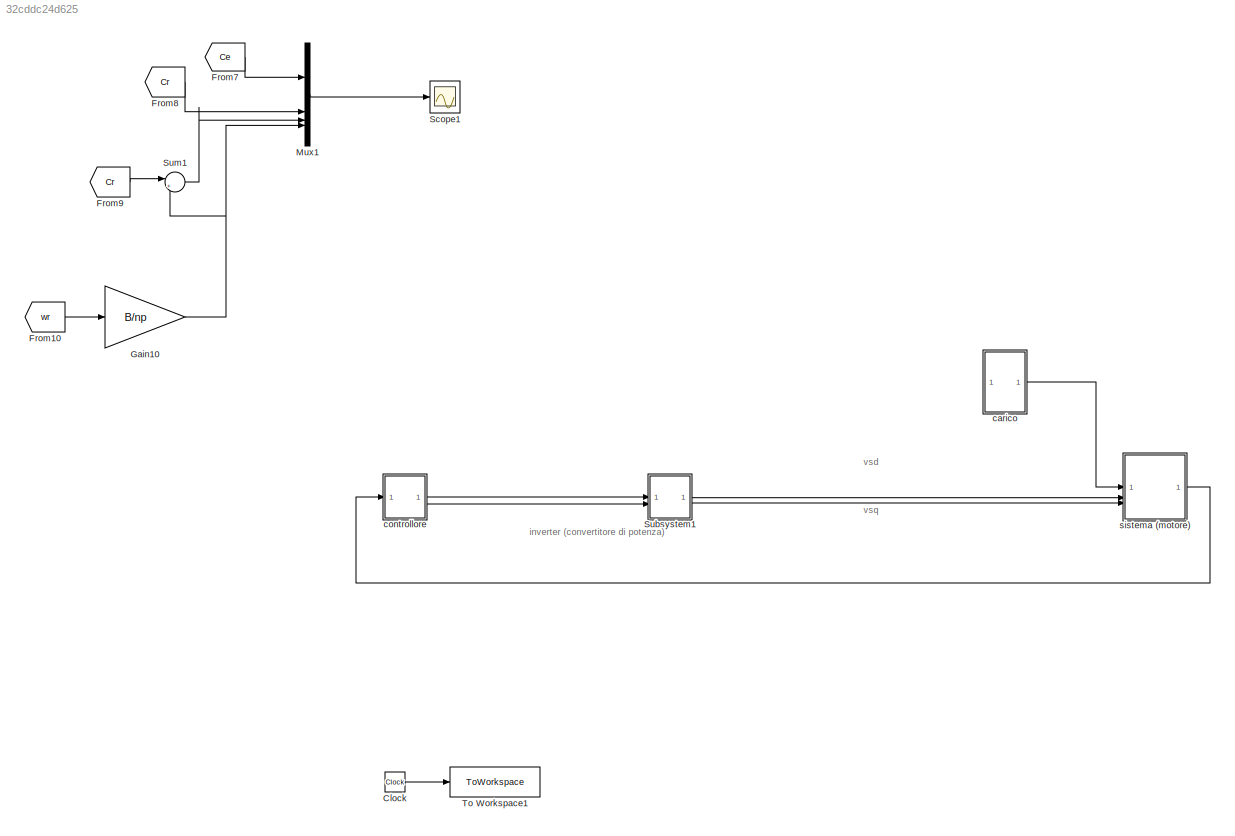
MODEL slx_32cddc24d625
KIND model
CONFIG AbsTol = auto
CONFIG EnableMultiTasking = off
CONFIG FixedStep = 1e-5
CONFIG MaxStep = auto
CONFIG MinStep = auto
CONFIG RelTol = 1e-3
CONFIG SampleTimeConstraint = Unconstrained
CONFIG SolverName = FixedStepAuto
CONFIG StartTime = 0.0
CONFIG StopTime = 0.2
BLOCK [Clock] Clock
BLOCK [From] From10
  GotoTag = wr
  TagVisibility = global
BLOCK [From] From7
  GotoTag = Ce
  TagVisibility = global
BLOCK [From] From8
  GotoTag = Cr
  TagVisibility = global
BLOCK [From] From9
  GotoTag = Cr
  TagVisibility = global
BLOCK [Gain] Gain10
  Gain = B/np
BLOCK [Mux] Mux1
  DisplayOption = bar
BLOCK [Scope] Scope1
  ActiveDisplayYMaximum = 0.67499999999999138
  ActiveDisplayYMinimum = -0.074999999999999026
  DataLoggingVariableName = ScopeData2
  Floating = off
  GraphicalSettings = {"Style":{"BackgroundColor":[0.12941176470588237,0.12941176470588237,0.12941176470588237],"AxesColor":[0.07058823529411765,0.07058823529411765,0.07058823529411765],"LabelsColor":[0.8509803921568627,0.8509803921568627,0.8509803921568627],"PreserveColors":false,"Visible":[true,true,true,true],"LineStyle":["-","-","-","-"],"LineWidth":[1.5,1.5,1.5,1.5],"BarWidth":[0.9,0.9,0.9,0.9],"LineColor":["auto"...<+2330ch>
  MultipleDisplayCache = [{"MaxYLimMag":0.67499999999999138,"MaxYLimReal":0.67499999999999138,"MinYLimMag":0,"MinYLimReal":-0.074999999999999026,"PlotAsMagnitudePhase":false,"ShowGrid":true,"ShowLegend":false,"Title":"%<SignalLabel>","YLabel":""}]
  NumInputPorts = 1
  ScopeFrameLocation = window
  WasSavedAsWebScope = on
  WindowPosition = [0.000000,36.000000,1536.000000,793.000000,]
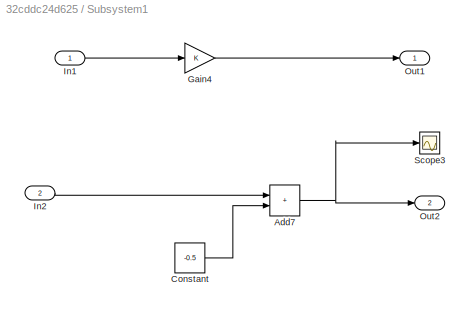
BLOCK [SubSystem] Subsystem1
BLOCK [Sum] Subsystem1/Add7
  IconShape = rectangular
BLOCK [Constant] Subsystem1/Constant
  Value = -0.5
BLOCK [Gain] Subsystem1/Gain4
BLOCK [Inport] Subsystem1/In1
BLOCK [Inport] Subsystem1/In2
  Port = 2
BLOCK [Outport] Subsystem1/Out1
BLOCK [Outport] Subsystem1/Out2
  Port = 2
BLOCK [Scope] Subsystem1/Scope3
  ActiveDisplayYMaximum = 128.16890254271289
  ActiveDisplayYMinimum = -10.413828677585377
  DataLoggingVariableName = ScopeData1
  Floating = off
  GraphicalSettings = {"Style":{"BackgroundColor":[0.12941176470588237,0.12941176470588237,0.12941176470588237],"AxesColor":[0.07058823529411765,0.07058823529411765,0.07058823529411765],"LabelsColor":[0.8509803921568627,0.8509803921568627,0.8509803921568627],"PreserveColors":false,"Visible":[true],"LineStyle":["-"],"LineWidth":[1.5],"BarWidth":[0.9],"LineColor":["auto"],"LineFaceAlpha":[1],"LineEdgeAlpha":[1],"Marker":...<+1995ch>
  MultipleDisplayCache = [{"MaxYLimMag":128.16890254271289,"MaxYLimReal":128.16890254271289,"MinYLimMag":0,"MinYLimReal":-10.413828677585377,"PlotAsMagnitudePhase":false,"ShowGrid":true,"ShowLegend":false,"Title":"%<SignalLabel>","YLabel":""}]
  NumInputPorts = 1
  ScopeFrameLocation = window
  WasSavedAsWebScope = on
  WindowPosition = [488.000000,222.000000,560.000000,420.000000,]
BLOCK [Sum] Sum1
  Inputs = |++
BLOCK [ToWorkspace] To Workspace1
  FixptAsFi = on
  MaxDataPoints = inf
  SampleTime = -1
  SaveFormat = Timeseries
  VariableName = ts
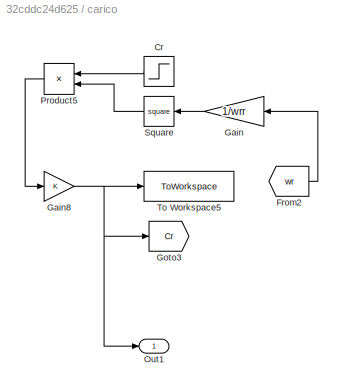
BLOCK [SubSystem] carico
BLOCK [Step] carico/Cr
  After = 0.6
  NameLocation = top
  SampleTime = 0
  Time = 0
BLOCK [From] carico/From2
  GotoTag = wr
  TagVisibility = global
BLOCK [Gain] carico/Gain
  Gain = 1/wrr
  NameLocation = top
BLOCK [Gain] carico/Gain8
BLOCK [Goto] carico/Goto3
  GotoTag = Cr
  TagVisibility = global
BLOCK [Outport] carico/Out1
BLOCK [Product] carico/Product5
  NameLocation = top
BLOCK [Math] carico/Square
  NameLocation = top
  Operator = square
BLOCK [ToWorkspace] carico/To Workspace5
  FixptAsFi = on
  MaxDataPoints = inf
  SampleTime = -1
  SaveFormat = Timeseries
  VariableName = Cr
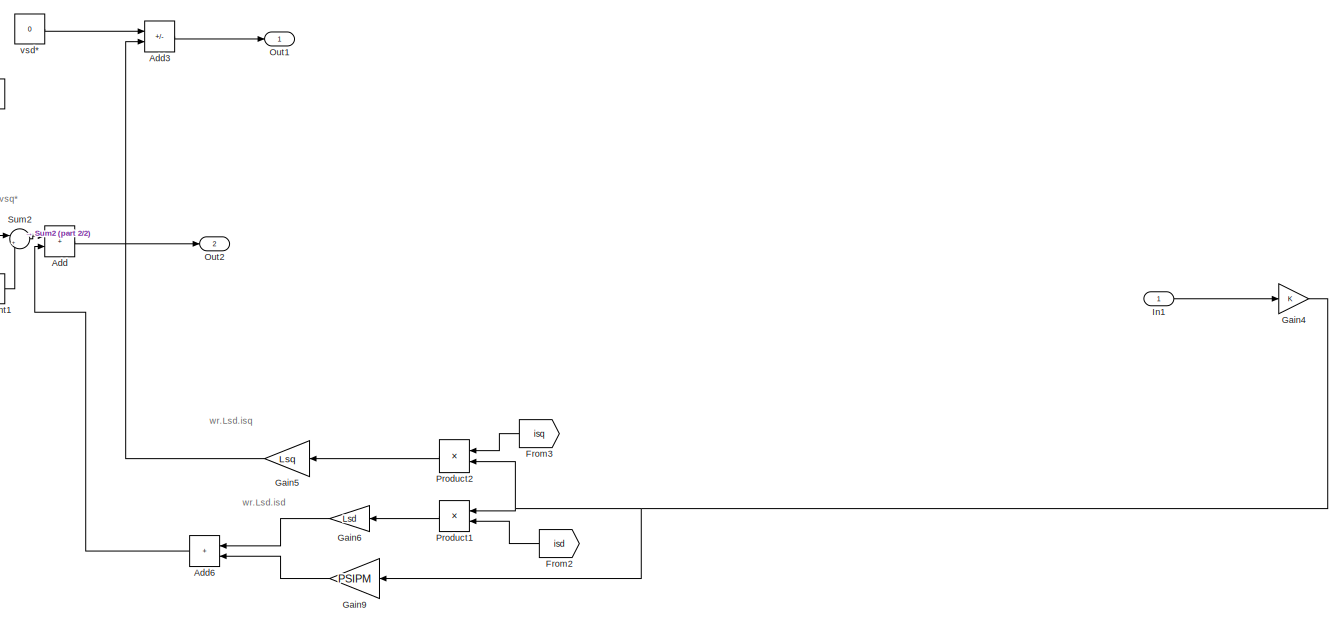
[diagram: controllore - part 1/2, most of the canvas]
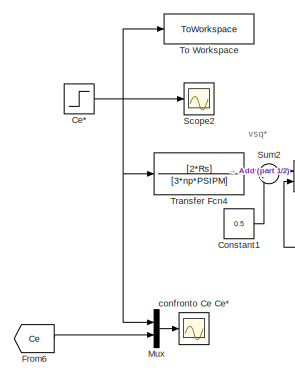
[diagram: controllore - part 2/2, middle left region]
BLOCK [SubSystem] controllore
BLOCK [Sum] controllore/Add
  IconShape = rectangular
BLOCK [Sum] controllore/Add3
  IconShape = rectangular
  Inputs = +-
BLOCK [Sum] controllore/Add6
  IconShape = rectangular
  NameLocation = top
BLOCK [Step] controllore/Ce*
  After = 0.6
  SampleTime = 0
  Time = 0
BLOCK [Constant] controllore/Constant1
  Value = 0.5
BLOCK [From] controllore/From2
  GotoTag = isd
  NameLocation = top
  TagVisibility = global
BLOCK [From] controllore/From3
  GotoTag = isq
  NameLocation = top
  TagVisibility = global
BLOCK [From] controllore/From6
  GotoTag = Ce
  TagVisibility = global
BLOCK [Gain] controllore/Gain4
BLOCK [Gain] controllore/Gain5
  Gain = Lsq
  NameLocation = top
BLOCK [Gain] controllore/Gain6
  Gain = Lsd
  NameLocation = top
BLOCK [Gain] controllore/Gain9
  Gain = PSIPM
  NameLocation = top
BLOCK [Inport] controllore/In1
BLOCK [Mux] controllore/Mux
  DisplayOption = bar
  Inputs = 2
BLOCK [Outport] controllore/Out1
BLOCK [Outport] controllore/Out2
  Port = 2
BLOCK [Product] controllore/Product1
  NameLocation = top
BLOCK [Product] controllore/Product2
  NameLocation = top
BLOCK [Scope] controllore/Scope2
  ActiveDisplayYMaximum = 1
  ActiveDisplayYMinimum = -1
  DataLoggingVariableName = ScopeData2
  Floating = off
  GraphicalSettings = {"Style":{"BackgroundColor":[0.12941176470588237,0.12941176470588237,0.12941176470588237],"AxesColor":[0.07058823529411765,0.07058823529411765,0.07058823529411765],"LabelsColor":[0.8509803921568627,0.8509803921568627,0.8509803921568627],"PreserveColors":false,"Visible":[true],"LineStyle":["-"],"LineWidth":[1.5],"BarWidth":[0.9],"LineColor":["auto"],"LineFaceAlpha":[1],"LineEdgeAlpha":[1],"Marker":...<+1904ch>
  MultipleDisplayCache = [{"MaxYLimMag":1,"MaxYLimReal":1,"MinYLimMag":0,"MinYLimReal":-1,"PlotAsMagnitudePhase":false,"ShowGrid":true,"ShowLegend":false,"Title":"%<SignalLabel>","YLabel":""}]
  NumInputPorts = 1
  ScopeFrameLocation = window
  WasSavedAsWebScope = on
  WindowPosition = [488.000000,222.000000,560.000000,420.000000,]
BLOCK [Sum] controllore/Sum2
  Inputs = |++
BLOCK [ToWorkspace] controllore/To Workspace
  FixptAsFi = on
  MaxDataPoints = inf
  SampleTime = -1
  SaveFormat = Timeseries
  VariableName = Cer
BLOCK [TransferFcn] controllore/Transfer Fcn4
  Denominator = [3*np*PSIPM]
  Numerator = [2*Rs]
BLOCK [Scope] controllore/confronto Ce Ce*
  ActiveDisplayYMaximum = 0.61079
  ActiveDisplayYMinimum = 0.29519
  DataLoggingVariableName = ScopeData1
  Floating = off
  GraphicalSettings = {"Style":{"BackgroundColor":[0.12941176470588237,0.12941176470588237,0.12941176470588237],"AxesColor":[0.07058823529411765,0.07058823529411765,0.07058823529411765],"LabelsColor":[0.8509803921568627,0.8509803921568627,0.8509803921568627],"PreserveColors":false,"Visible":[true,true],"LineStyle":["-","-"],"LineWidth":[1.5,1.5],"BarWidth":[0.9,0.9],"LineColor":["auto","auto"],"LineFaceAlpha":[1,1],"Li...<+2046ch>
  MultipleDisplayCache = [{"MaxYLimMag":0.61079,"MaxYLimReal":0.61079,"MinYLimMag":0.29519,"MinYLimReal":0.29519,"PlotAsMagnitudePhase":false,"ShowGrid":true,"ShowLegend":false,"Title":"%<SignalLabel>","YLabel":""}]
  NumInputPorts = 1
  ScopeFrameLocation = window
  Visible = on
  WasSavedAsWebScope = on
  WindowPosition = [488.000000,222.000000,560.000000,420.000000,]
BLOCK [Constant] controllore/vsd*
  Value = 0
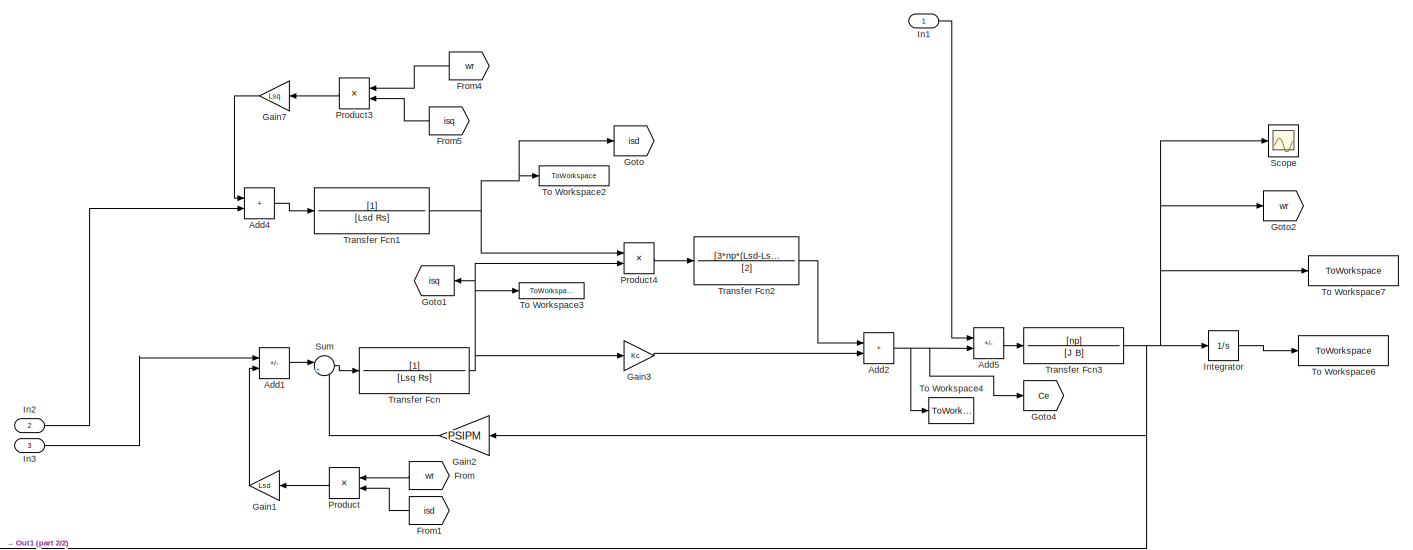
[diagram: sistema (motore) - part 1/2, most of the canvas]
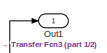
[diagram: sistema (motore) - part 2/2, bottom left region]
BLOCK [SubSystem] sistema (motore)
BLOCK [Sum] sistema (motore)/Add1
  IconShape = rectangular
  Inputs = +-
BLOCK [Sum] sistema (motore)/Add2
  IconShape = rectangular
BLOCK [Sum] sistema (motore)/Add4
  IconShape = rectangular
BLOCK [Sum] sistema (motore)/Add5
  IconShape = rectangular
  Inputs = -+
BLOCK [From] sistema (motore)/From
  GotoTag = wr
  NameLocation = top
  TagVisibility = global
BLOCK [From] sistema (motore)/From1
  GotoTag = isd
  NameLocation = top
  TagVisibility = global
BLOCK [From] sistema (motore)/From4
  GotoTag = wr
  NameLocation = top
  TagVisibility = global
BLOCK [From] sistema (motore)/From5
  GotoTag = isq
  NameLocation = top
  TagVisibility = global
BLOCK [Gain] sistema (motore)/Gain1
  Gain = Lsd
  NameLocation = top
BLOCK [Gain] sistema (motore)/Gain2
  Gain = PSIPM
  NameLocation = top
BLOCK [Gain] sistema (motore)/Gain3
  Gain = Kc
BLOCK [Gain] sistema (motore)/Gain7
  Gain = Lsq
  NameLocation = top
BLOCK [Goto] sistema (motore)/Goto
  GotoTag = isd
  TagVisibility = global
BLOCK [Goto] sistema (motore)/Goto1
  GotoTag = isq
  NameLocation = top
  TagVisibility = global
BLOCK [Goto] sistema (motore)/Goto2
  GotoTag = wr
  TagVisibility = global
BLOCK [Goto] sistema (motore)/Goto4
  GotoTag = Ce
  TagVisibility = global
BLOCK [Inport] sistema (motore)/In1
BLOCK [Inport] sistema (motore)/In2
  Port = 2
BLOCK [Inport] sistema (motore)/In3
  Port = 3
BLOCK [Integrator] sistema (motore)/Integrator
BLOCK [Outport] sistema (motore)/Out1
BLOCK [Product] sistema (motore)/Product
  NameLocation = top
BLOCK [Product] sistema (motore)/Product3
  NameLocation = top
BLOCK [Product] sistema (motore)/Product4
BLOCK [Scope] sistema (motore)/Scope
  ActiveDisplayYMaximum = 1385.8273122029825
  ActiveDisplayYMinimum = -153.98081246699803
  DataLoggingVariableName = ScopeData1
  Floating = off
  GraphicalSettings = {"Style":{"BackgroundColor":[0.12941176470588237,0.12941176470588237,0.12941176470588237],"AxesColor":[0.07058823529411765,0.07058823529411765,0.07058823529411765],"LabelsColor":[0.8509803921568627,0.8509803921568627,0.8509803921568627],"PreserveColors":false,"Visible":[true],"LineStyle":["-"],"LineWidth":[1.5],"BarWidth":[0.9],"LineColor":["auto"],"LineFaceAlpha":[1],"LineEdgeAlpha":[1],"Marker":...<+2012ch>
  MultipleDisplayCache = [{"MaxYLimMag":1385.8273122029825,"MaxYLimReal":1385.8273122029825,"MinYLimMag":0,"MinYLimReal":-153.98081246699803,"PlotAsMagnitudePhase":false,"ShowGrid":true,"ShowLegend":false,"Title":"%<SignalLabel>","YLabel":""}]
  NumInputPorts = 1
  ScopeFrameLocation = window
  WasSavedAsWebScope = on
  WindowPosition = [488.000000,222.000000,560.000000,420.000000,]
BLOCK [Sum] sistema (motore)/Sum
  Inputs = |+-
BLOCK [ToWorkspace] sistema (motore)/To Workspace2
  FixptAsFi = on
  MaxDataPoints = inf
  SampleTime = -1
  SaveFormat = Timeseries
  VariableName = isd
BLOCK [ToWorkspace] sistema (motore)/To Workspace3
  FixptAsFi = on
  MaxDataPoints = inf
  SampleTime = -1
  SaveFormat = Timeseries
  VariableName = isq
BLOCK [ToWorkspace] sistema (motore)/To Workspace4
  FixptAsFi = on
  MaxDataPoints = inf
  SampleTime = -1
  SaveFormat = Timeseries
  VariableName = Ce
BLOCK [ToWorkspace] sistema (motore)/To Workspace6
  FixptAsFi = on
  MaxDataPoints = inf
  SampleTime = -1
  SaveFormat = Timeseries
  VariableName = tetar
BLOCK [ToWorkspace] sistema (motore)/To Workspace7
  FixptAsFi = on
  MaxDataPoints = inf
  SampleTime = -1
  SaveFormat = Timeseries
  VariableName = wr
BLOCK [TransferFcn] sistema (motore)/Transfer Fcn
  Denominator = [Lsq Rs]
BLOCK [TransferFcn] sistema (motore)/Transfer Fcn1
  Denominator = [Lsd Rs]
BLOCK [TransferFcn] sistema (motore)/Transfer Fcn2
  Denominator = [2]
  Numerator = [3*np*(Lsd-Lsq)]
BLOCK [TransferFcn] sistema (motore)/Transfer Fcn3
  Denominator = [J B]
  Numerator = [np]
ANNOTATION (root): inverter (convertitore di potenza)
ANNOTATION (root): vsd
ANNOTATION (root): vsq
ANNOTATION controllore: vsq*
ANNOTATION controllore: wr.Lsd.isd
ANNOTATION controllore: wr.Lsd.isq
LINE Clock:1 -> To Workspace1:1
LINE From10:1 -> Gain10:1
LINE From7:1 -> Mux1:1
LINE From8:1 -> Mux1:2
LINE From9:1 -> Sum1:1
NET Gain10:1 -> Mux1:4, Sum1:2
LINE Mux1:1 -> Scope1:1
NET Subsystem1/Add7:1 -> Subsystem1/Out2:1, Subsystem1/Scope3:1
LINE Subsystem1/Constant:1 -> Subsystem1/Add7:2
LINE Subsystem1/Gain4:1 -> Subsystem1/Out1:1
LINE Subsystem1/In1:1 -> Subsystem1/Gain4:1
LINE Subsystem1/In2:1 -> Subsystem1/Add7:1
LINE Subsystem1:1 -> sistema (motore):2
LINE Subsystem1:2 -> sistema (motore):3
LINE Sum1:1 -> Mux1:3
LINE carico/Cr:1 -> carico/Product5:1
LINE carico/From2:1 -> carico/Gain:1
NET carico/Gain8:1 -> carico/Goto3:1, carico/Out1:1, carico/To Workspace5:1
LINE carico/Gain:1 -> carico/Square:1
LINE carico/Product5:1 -> carico/Gain8:1
LINE carico/Square:1 -> carico/Product5:2
LINE carico:1 -> sistema (motore):1
LINE controllore/Add3:1 -> controllore/Out1:1
LINE controllore/Add6:1 -> controllore/Add:2
LINE controllore/Add:1 -> controllore/Out2:1
NET controllore/Ce*:1 -> controllore/Mux:1, controllore/Scope2:1, controllore/To Workspace:1, controllore/Transfer Fcn4:1
LINE controllore/Constant1:1 -> controllore/Sum2:2
LINE controllore/From2:1 -> controllore/Product1:2
LINE controllore/From3:1 -> controllore/Product2:1
LINE controllore/From6:1 -> controllore/Mux:2
NET controllore/Gain4:1 -> controllore/Gain9:1, controllore/Product1:1, controllore/Product2:2
LINE controllore/Gain5:1 -> controllore/Add3:2
LINE controllore/Gain6:1 -> controllore/Add6:1
LINE controllore/Gain9:1 -> controllore/Add6:2
LINE controllore/In1:1 -> controllore/Gain4:1
LINE controllore/Mux:1 -> controllore/confronto Ce Ce*:1
LINE controllore/Product1:1 -> controllore/Gain6:1
LINE controllore/Product2:1 -> controllore/Gain5:1
LINE controllore/Sum2:1 -> controllore/Add:1
LINE controllore/Transfer Fcn4:1 -> controllore/Sum2:1
LINE controllore/vsd*:1 -> controllore/Add3:1
LINE controllore:1 -> Subsystem1:1
LINE controllore:2 -> Subsystem1:2
LINE sistema (motore)/Add1:1 -> sistema (motore)/Sum:1
NET sistema (motore)/Add2:1 -> sistema (motore)/Add5:2, sistema (motore)/Goto4:1, sistema (motore)/To Workspace4:1
LINE sistema (motore)/Add4:1 -> sistema (motore)/Transfer Fcn1:1
LINE sistema (motore)/Add5:1 -> sistema (motore)/Transfer Fcn3:1
LINE sistema (motore)/From1:1 -> sistema (motore)/Product:2
LINE sistema (motore)/From4:1 -> sistema (motore)/Product3:1
LINE sistema (motore)/From5:1 -> sistema (motore)/Product3:2
LINE sistema (motore)/From:1 -> sistema (motore)/Product:1
LINE sistema (motore)/Gain1:1 -> sistema (motore)/Add1:2
LINE sistema (motore)/Gain2:1 -> sistema (motore)/Sum:2
LINE sistema (motore)/Gain3:1 -> sistema (motore)/Add2:2
LINE sistema (motore)/Gain7:1 -> sistema (motore)/Add4:1
LINE sistema (motore)/In1:1 -> sistema (motore)/Add5:1
LINE sistema (motore)/In2:1 -> sistema (motore)/Add4:2
LINE sistema (motore)/In3:1 -> sistema (motore)/Add1:1
LINE sistema (motore)/Integrator:1 -> sistema (motore)/To Workspace6:1
LINE sistema (motore)/Product3:1 -> sistema (motore)/Gain7:1
LINE sistema (motore)/Product4:1 -> sistema (motore)/Transfer Fcn2:1
LINE sistema (motore)/Product:1 -> sistema (motore)/Gain1:1
LINE sistema (motore)/Sum:1 -> sistema (motore)/Transfer Fcn:1
NET sistema (motore)/Transfer Fcn1:1 -> sistema (motore)/Goto:1, sistema (motore)/Product4:1, sistema (motore)/To Workspace2:1
LINE sistema (motore)/Transfer Fcn2:1 -> sistema (motore)/Add2:1
NET sistema (motore)/Transfer Fcn3:1 -> sistema (motore)/Gain2:1, sistema (motore)/Goto2:1, sistema (motore)/Integrator:1, sistema (motore)/Out1:1, sistema (motore)/Scope:1, sistema (motore)/To Workspace7:1
NET sistema (motore)/Transfer Fcn:1 -> sistema (motore)/Gain3:1, sistema (motore)/Goto1:1, sistema (motore)/Product4:2, sistema (motore)/To Workspace3:1
LINE sistema (motore):1 -> controllore:1
note: NET lines group one-source signal fan-out (src -> all destinations, sorted); 1:1 wires keep LINE
